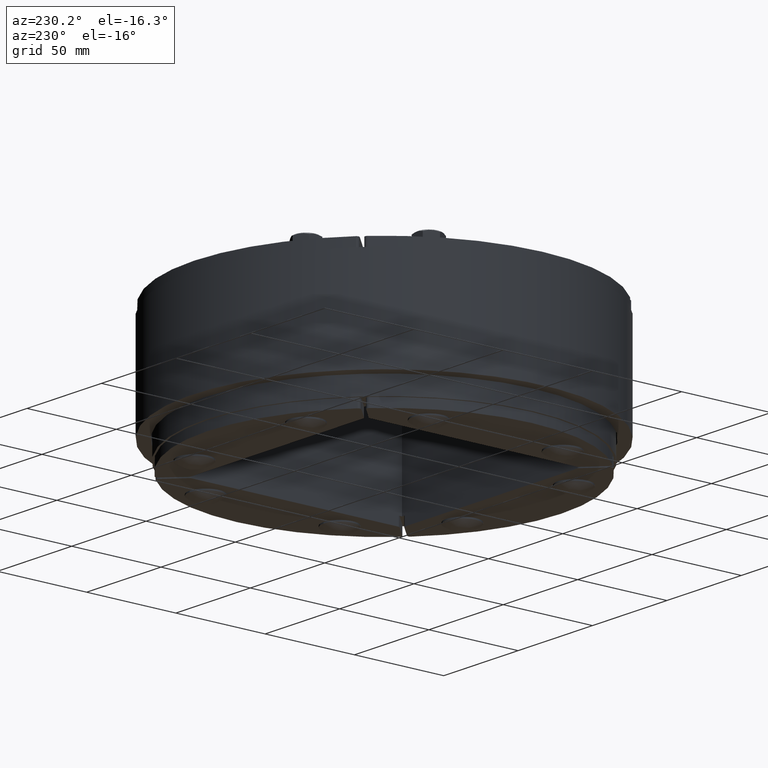
[diagram: clean part render]
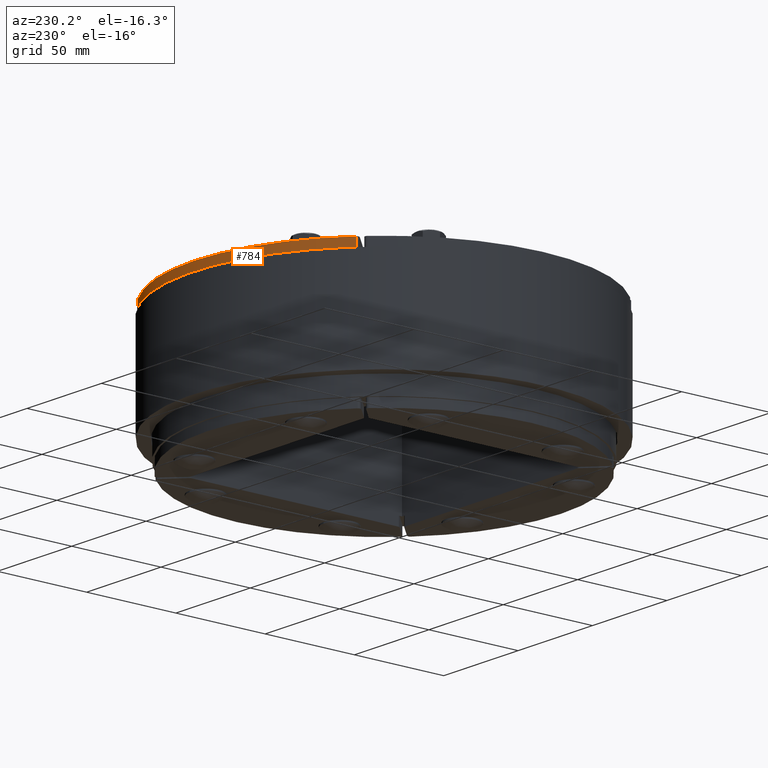
[diagram: same view with one face highlighted and labeled with its STEP entity id]
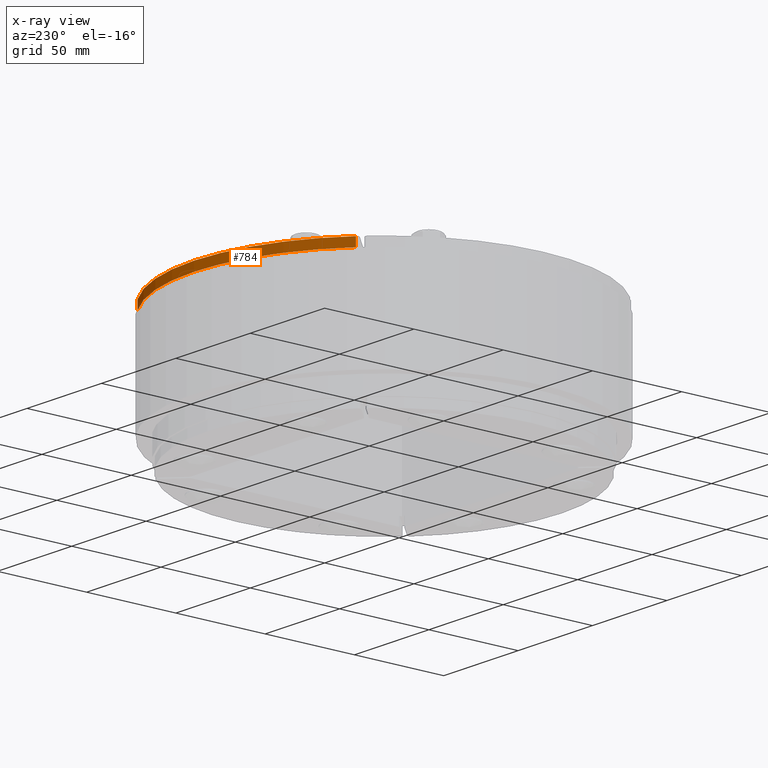
[diagram: x-ray of the same camera — body ghosted, the highlighted face saturated]
A machine part, auxiliary view. The second image highlights one B-rep face of the part: STEP entity #784.
The next image is the same camera in x-ray: the body ghosted, the highlighted face saturated — about 0% of this face is hidden behind the body in this view.
In plain terms, the highlighted cylindrical surface (partial cylindrical patch) has radius 106.5 mm, axis along (0, 0, -1).
Its self-contained STEP definition (entity closure, byte-faithful):
#717=CARTESIAN_POINT('',(73.49250291845911,77.078544451619479,-5.0));
#718=VERTEX_POINT('',#717);
#726=CARTESIAN_POINT('',(73.49250291845911,77.078544451619479,0.0));
#727=VERTEX_POINT('',#726);
#728=CARTESIAN_POINT('',(73.492502918459124,77.078544451619479,-5.0));
#729=DIRECTION('',(0.0,0.0,1.0));
#730=VECTOR('',#729,5.0);
#731=LINE('',#728,#730);
#732=EDGE_CURVE('',#718,#727,#731,.T.);
#752=CARTESIAN_POINT('',(0.0,0.0,0.0));
#753=DIRECTION('',(0.0,0.0,-1.0));
#754=DIRECTION('',(-1.0,0.0,0.0));
#755=AXIS2_PLACEMENT_3D('',#752,#753,#754);
#756=CYLINDRICAL_SURFACE('',#755,106.5);
#757=ORIENTED_EDGE('',*,*,#732,.F.);
#758=CARTESIAN_POINT('',(-73.49250291845911,77.078544451619479,-5.0));
#759=VERTEX_POINT('',#758);
#760=CARTESIAN_POINT('',(0.0,0.0,-5.0));
#761=DIRECTION('',(0.0,0.0,-1.0));
#762=DIRECTION('',(-1.0,0.0,0.0));
#763=AXIS2_PLACEMENT_3D('',#760,#761,#762);
#764=CIRCLE('',#763,106.5);
#765=EDGE_CURVE('',#759,#718,#764,.T.);
#766=ORIENTED_EDGE('',*,*,#765,.F.);
#767=CARTESIAN_POINT('',(-73.49250291845911,77.078544451619479,0.0));
#768=VERTEX_POINT('',#767);
#769=CARTESIAN_POINT('',(-73.492502918459124,77.078544451619479,0.0));
#770=DIRECTION('',(0.0,0.0,-1.0));
#771=VECTOR('',#770,5.0);
#772=LINE('',#769,#771);
#773=EDGE_CURVE('',#768,#759,#772,.T.);
#774=ORIENTED_EDGE('',*,*,#773,.F.);
#775=CARTESIAN_POINT('',(0.0,0.0,0.0));
#776=DIRECTION('',(0.0,0.0,-1.0));
#777=DIRECTION('',(-1.0,0.0,0.0));
#778=AXIS2_PLACEMENT_3D('',#775,#776,#777);
#779=CIRCLE('',#778,106.5);
#780=EDGE_CURVE('',#768,#727,#779,.T.);
#781=ORIENTED_EDGE('',*,*,#780,.T.);
#782=EDGE_LOOP('',(#757,#766,#774,#781));
#783=FACE_OUTER_BOUND('',#782,.T.);
#784=ADVANCED_FACE('',(#783),#756,.T.);